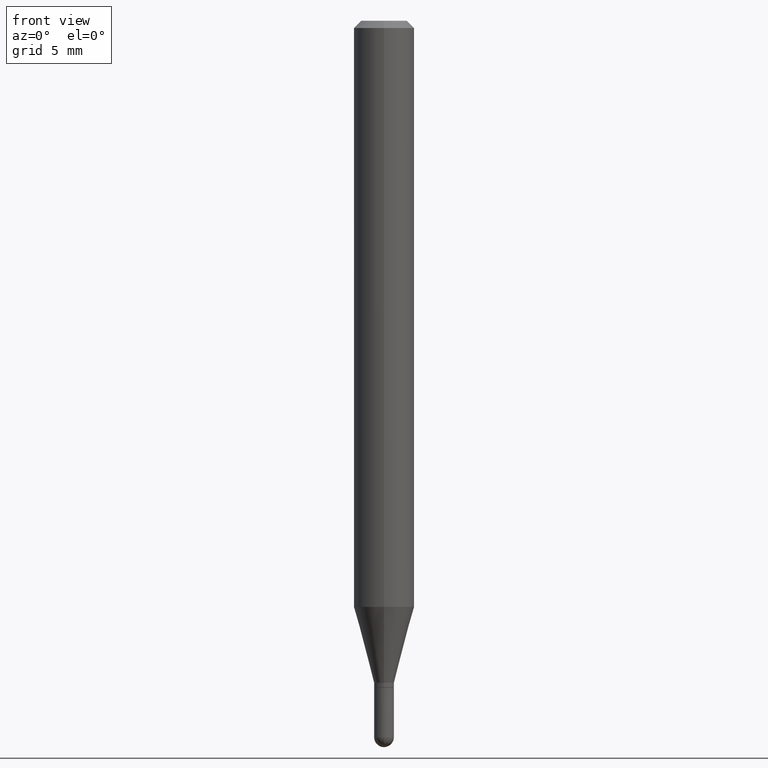
[diagram: clean part render]
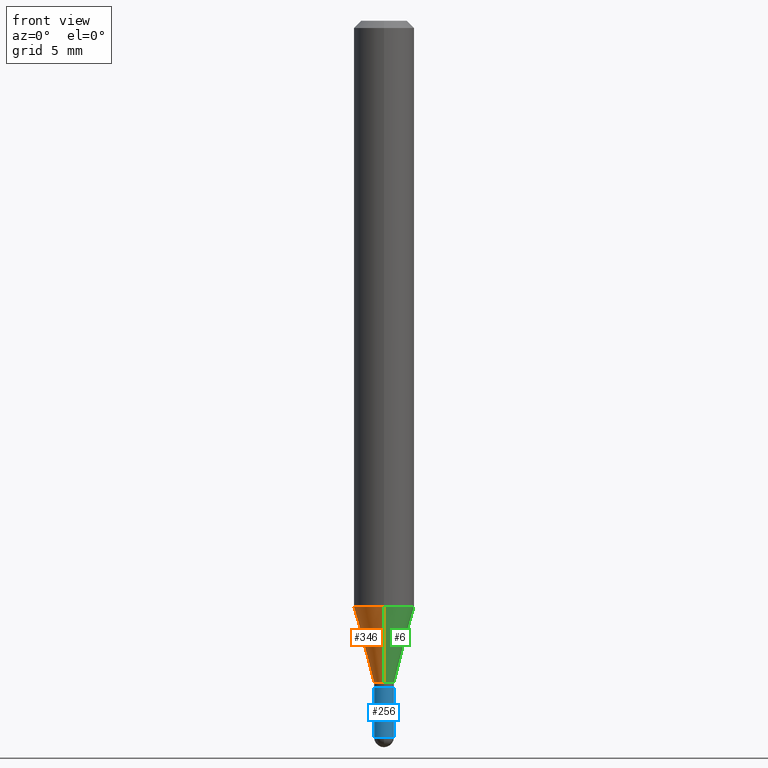
[diagram: same view with three faces highlighted in distinct colors, each labeled with its STEP entity id]
A machine part, front view with three faces highlighted in distinct colors.
Their STEP definitions:

[orange] entity #346 — the highlighted conical surface has half-angle 15 deg.
#15 = CARTESIAN_POINT ( 'NONE',  ( 4.440892098500920012E-16, 0.06249999999999574646, -1.210253866082108276 ) ) ;
#19 = VERTEX_POINT ( 'NONE', #252 ) ;
#27 = ORIENTED_EDGE ( 'NONE', *, *, #399, .F. ) ;
#36 = DIRECTION ( 'NONE',  ( -2.445286183513924545E-29, 3.491742864902558020E-15, 1.000000000000000000 ) ) ;
#82 = DIRECTION ( 'NONE',  ( -6.982962677686265133E-15, -1.000000000000000000, 0.000000000000000000 ) ) ;
#108 = CARTESIAN_POINT ( 'NONE',  ( 2.959417057274890367E-29, -4.225895301612936912E-15, -1.210253866082107832 ) ) ;
#114 = EDGE_CURVE ( 'NONE', #426, #19, #218, .T. ) ;
#120 = LINE ( 'NONE', #480, #501 ) ;
#130 = ORIENTED_EDGE ( 'NONE', *, *, #189, .F. ) ;
#131 = CARTESIAN_POINT ( 'NONE',  ( -1.431507348925345485E-16, -0.02050000000000470543, -1.367000000000000215 ) ) ;
#137 = VERTEX_POINT ( 'NONE', #384 ) ;
#156 = CARTESIAN_POINT ( 'NONE',  ( 3.342706212863535616E-29, -4.773212496321797638E-15, -1.367000000000000215 ) ) ;
#171 = CIRCLE ( 'NONE', #188, 0.02049999999999993494 ) ;
#188 = AXIS2_PLACEMENT_3D ( 'NONE', #156, #367, #82 ) ;
#189 = EDGE_CURVE ( 'NONE', #446, #19, #211, .T. ) ;
#211 = CIRCLE ( 'NONE', #360, 0.06250000000000000000 ) ;
#218 = LINE ( 'NONE', #302, #284 ) ;
#233 = DIRECTION ( 'NONE',  ( 1.839019923739603471E-15, 0.2588190451025254024, 0.9659258262890670910 ) ) ;
#250 = CONICAL_SURFACE ( 'NONE', #487, 0.02049999999999993494, 0.2617993877991507401 ) ;
#252 = CARTESIAN_POINT ( 'NONE',  ( -4.364351673553621857E-16, -0.06250000000000424660, -1.210253866082107610 ) ) ;
#284 = VECTOR ( 'NONE', #500, 39.37007874015748854 ) ;
#296 = ORIENTED_EDGE ( 'NONE', *, *, #114, .T. ) ;
#302 = CARTESIAN_POINT ( 'NONE',  ( -1.431507348925345485E-16, -0.02050000000000470543, -1.367000000000000215 ) ) ;
#314 = DIRECTION ( 'NONE',  ( -6.982962677686265922E-15, -1.000000000000000000, 4.370956789862821150E-15 ) ) ;
#327 = DIRECTION ( 'NONE',  ( -6.982962677686265133E-15, -1.000000000000000000, 0.000000000000000000 ) ) ;
#346 = ADVANCED_FACE ( 'NONE', ( #397 ), #250, .T. ) ;
#357 = EDGE_CURVE ( 'NONE', #137, #426, #171, .T. ) ;
#360 = AXIS2_PLACEMENT_3D ( 'NONE', #108, #429, #314 ) ;
#362 = CARTESIAN_POINT ( 'NONE',  ( 3.342706212863535616E-29, -4.773212496321797638E-15, -1.367000000000000215 ) ) ;
#367 = DIRECTION ( 'NONE',  ( -2.445286183513924545E-29, 3.491742864902558020E-15, 1.000000000000000000 ) ) ;
#383 = ORIENTED_EDGE ( 'NONE', *, *, #357, .T. ) ;
#384 = CARTESIAN_POINT ( 'NONE',  ( 2.948752353404729004E-16, 0.02049999999999516098, -1.367000000000000215 ) ) ;
#397 = FACE_OUTER_BOUND ( 'NONE', #410, .T. ) ;
#399 = EDGE_CURVE ( 'NONE', #137, #446, #120, .T. ) ;
#410 = EDGE_LOOP ( 'NONE', ( #27, #383, #296, #130 ) ) ;
#426 = VERTEX_POINT ( 'NONE', #131 ) ;
#429 = DIRECTION ( 'NONE',  ( -2.445286183513924545E-29, 3.491742864902558020E-15, 1.000000000000000000 ) ) ;
#446 = VERTEX_POINT ( 'NONE', #15 ) ;
#480 = CARTESIAN_POINT ( 'NONE',  ( 1.456612608308534545E-16, 0.02049999999999516098, -1.367000000000000215 ) ) ;
#487 = AXIS2_PLACEMENT_3D ( 'NONE', #362, #36, #327 ) ;
#500 = DIRECTION ( 'NONE',  ( -1.807323732225332900E-15, -0.2588190451025185745, 0.9659258262890687563 ) ) ;
#501 = VECTOR ( 'NONE', #233, 39.37007874015748143 ) ;

[blue] entity #256 — the highlighted cylindrical surface (edge-blend (fillet) strip) has radius 0.5207 mm, axis along (-0, 0, 1).
#13 = AXIS2_PLACEMENT_3D ( 'NONE', #247, #83, #241 ) ;
#21 = EDGE_CURVE ( 'NONE', #67, #495, #409, .T. ) ;
#24 = EDGE_CURVE ( 'NONE', #343, #413, #56, .T. ) ;
#37 = VECTOR ( 'NONE', #494, 39.37007874015748143 ) ;
#56 = LINE ( 'NONE', #207, #151 ) ;
#61 = DIRECTION ( 'NONE',  ( 1.000000000000000000, -6.982962677686264344E-15, 0.000000000000000000 ) ) ;
#67 = VERTEX_POINT ( 'NONE', #508 ) ;
#70 = CIRCLE ( 'NONE', #13, 0.02050000000000000086 ) ;
#76 = AXIS2_PLACEMENT_3D ( 'NONE', #468, #299, #111 ) ;
#83 = DIRECTION ( 'NONE',  ( -2.445468806185136597E-29, 3.491481338843145583E-15, 1.000000000000000000 ) ) ;
#88 = DIRECTION ( 'NONE',  ( -2.445468806185136597E-29, 3.491481338843145583E-15, 1.000000000000000000 ) ) ;
#105 = CARTESIAN_POINT ( 'NONE',  ( 3.618071098750910124E-29, -5.165646640818434953E-15, -1.479500000000000259 ) ) ;
#109 = ORIENTED_EDGE ( 'NONE', *, *, #200, .T. ) ;
#111 = DIRECTION ( 'NONE',  ( 1.000000000000000000, -6.982962677686264344E-15, 0.000000000000000000 ) ) ;
#125 = CARTESIAN_POINT ( 'NONE',  ( -0.02050000000000000086, -4.841046961371903070E-15, -1.377000000000000002 ) ) ;
#127 = DIRECTION ( 'NONE',  ( 1.000000000000000000, -6.982962677686267499E-15, 4.876176775795935232E-29 ) ) ;
#140 = EDGE_CURVE ( 'NONE', #343, #428, #398, .T. ) ;
#151 = VECTOR ( 'NONE', #368, 39.37007874015748143 ) ;
#152 = FACE_OUTER_BOUND ( 'NONE', #274, .T. ) ;
#159 = CARTESIAN_POINT ( 'NONE',  ( -0.02049999999999999392, -4.841046961371903070E-15, -1.479500000000000259 ) ) ;
#162 = CYLINDRICAL_SURFACE ( 'NONE', #374, 0.02049999999999999739 ) ;
#200 = EDGE_CURVE ( 'NONE', #428, #67, #412, .T. ) ;
#202 = ORIENTED_EDGE ( 'NONE', *, *, #24, .F. ) ;
#207 = CARTESIAN_POINT ( 'NONE',  ( -0.02049999999999999739, 1.456612608308205196E-16, -1.008381693502255444E-30 ) ) ;
#241 = DIRECTION ( 'NONE',  ( 1.000000000000000000, -6.982962677686261977E-15, 0.000000000000000000 ) ) ;
#247 = CARTESIAN_POINT ( 'NONE',  ( 3.367410546116933466E-29, -4.807769803587011733E-15, -1.377000000000000002 ) ) ;
#249 = CARTESIAN_POINT ( 'NONE',  ( -1.456612608307842073E-16, -0.02050000000000514952, -1.479500000000000259 ) ) ;
#256 = ADVANCED_FACE ( 'NONE', ( #152 ), #162, .T. ) ;
#274 = EDGE_LOOP ( 'NONE', ( #202, #490, #109, #454, #503 ) ) ;
#286 = AXIS2_PLACEMENT_3D ( 'NONE', #105, #308, #61 ) ;
#299 = DIRECTION ( 'NONE',  ( -2.445468806185136597E-29, 3.491481338843145583E-15, 1.000000000000000000 ) ) ;
#308 = DIRECTION ( 'NONE',  ( -2.445468806185136597E-29, 3.491481338843145583E-15, 1.000000000000000000 ) ) ;
#320 = CARTESIAN_POINT ( 'NONE',  ( 0.000000000000000000, 0.000000000000000000, 0.000000000000000000 ) ) ;
#343 = VERTEX_POINT ( 'NONE', #159 ) ;
#366 = CARTESIAN_POINT ( 'NONE',  ( 0.02049999999999999739, -1.431507348925684695E-16, 9.996162390381665713E-31 ) ) ;
#368 = DIRECTION ( 'NONE',  ( -2.445468806185136877E-29, 3.491481338843145188E-15, 1.000000000000000000 ) ) ;
#374 = AXIS2_PLACEMENT_3D ( 'NONE', #320, #88, #127 ) ;
#398 = CIRCLE ( 'NONE', #286, 0.02049999999999999392 ) ;
#409 = LINE ( 'NONE', #366, #37 ) ;
#412 = CIRCLE ( 'NONE', #76, 0.02049999999999999392 ) ;
#413 = VERTEX_POINT ( 'NONE', #125 ) ;
#428 = VERTEX_POINT ( 'NONE', #249 ) ;
#441 = CARTESIAN_POINT ( 'NONE',  ( 0.02050000000000000086, -4.950920538479579759E-15, -1.377000000000000002 ) ) ;
#454 = ORIENTED_EDGE ( 'NONE', *, *, #21, .T. ) ;
#468 = CARTESIAN_POINT ( 'NONE',  ( 3.618071098750910124E-29, -5.165646640818434953E-15, -1.479500000000000259 ) ) ;
#483 = EDGE_CURVE ( 'NONE', #413, #495, #70, .T. ) ;
#490 = ORIENTED_EDGE ( 'NONE', *, *, #140, .T. ) ;
#494 = DIRECTION ( 'NONE',  ( -2.445468806185136877E-29, 3.491481338843145188E-15, 1.000000000000000000 ) ) ;
#495 = VERTEX_POINT ( 'NONE', #441 ) ;
#503 = ORIENTED_EDGE ( 'NONE', *, *, #483, .F. ) ;
#508 = CARTESIAN_POINT ( 'NONE',  ( 0.02049999999999999392, -5.129858957095291369E-15, -1.479500000000000259 ) ) ;

[green] entity #6 — the highlighted conical surface has half-angle 15 deg.
#6 = ADVANCED_FACE ( 'NONE', ( #205 ), #20, .T. ) ;
#15 = CARTESIAN_POINT ( 'NONE',  ( 4.440892098500920012E-16, 0.06249999999999574646, -1.210253866082108276 ) ) ;
#19 = VERTEX_POINT ( 'NONE', #252 ) ;
#20 = CONICAL_SURFACE ( 'NONE', #258, 0.02049999999999993494, 0.2617993877991507401 ) ;
#44 = DIRECTION ( 'NONE',  ( -6.982962677686265922E-15, -1.000000000000000000, 4.370956789862821150E-15 ) ) ;
#57 = EDGE_CURVE ( 'NONE', #426, #137, #230, .T. ) ;
#58 = DIRECTION ( 'NONE',  ( -2.445286183513924545E-29, 3.491742864902558020E-15, 1.000000000000000000 ) ) ;
#114 = EDGE_CURVE ( 'NONE', #426, #19, #218, .T. ) ;
#120 = LINE ( 'NONE', #480, #501 ) ;
#126 = DIRECTION ( 'NONE',  ( -2.445286183513924545E-29, 3.491742864902558020E-15, 1.000000000000000000 ) ) ;
#129 = CIRCLE ( 'NONE', #270, 0.06250000000000000000 ) ;
#131 = CARTESIAN_POINT ( 'NONE',  ( -1.431507348925345485E-16, -0.02050000000000470543, -1.367000000000000215 ) ) ;
#137 = VERTEX_POINT ( 'NONE', #384 ) ;
#145 = DIRECTION ( 'NONE',  ( -2.445286183513924545E-29, 3.491742864902558020E-15, 1.000000000000000000 ) ) ;
#164 = ORIENTED_EDGE ( 'NONE', *, *, #502, .F. ) ;
#168 = EDGE_LOOP ( 'NONE', ( #169, #301, #164, #335 ) ) ;
#169 = ORIENTED_EDGE ( 'NONE', *, *, #57, .T. ) ;
#177 = DIRECTION ( 'NONE',  ( -6.982962677686265133E-15, -1.000000000000000000, 0.000000000000000000 ) ) ;
#205 = FACE_OUTER_BOUND ( 'NONE', #168, .T. ) ;
#218 = LINE ( 'NONE', #302, #284 ) ;
#230 = CIRCLE ( 'NONE', #317, 0.02049999999999993494 ) ;
#233 = DIRECTION ( 'NONE',  ( 1.839019923739603471E-15, 0.2588190451025254024, 0.9659258262890670910 ) ) ;
#245 = CARTESIAN_POINT ( 'NONE',  ( 3.342706212863535616E-29, -4.773212496321797638E-15, -1.367000000000000215 ) ) ;
#252 = CARTESIAN_POINT ( 'NONE',  ( -4.364351673553621857E-16, -0.06250000000000424660, -1.210253866082107610 ) ) ;
#258 = AXIS2_PLACEMENT_3D ( 'NONE', #245, #58, #338 ) ;
#270 = AXIS2_PLACEMENT_3D ( 'NONE', #449, #126, #44 ) ;
#284 = VECTOR ( 'NONE', #500, 39.37007874015748854 ) ;
#301 = ORIENTED_EDGE ( 'NONE', *, *, #399, .T. ) ;
#302 = CARTESIAN_POINT ( 'NONE',  ( -1.431507348925345485E-16, -0.02050000000000470543, -1.367000000000000215 ) ) ;
#317 = AXIS2_PLACEMENT_3D ( 'NONE', #352, #145, #177 ) ;
#335 = ORIENTED_EDGE ( 'NONE', *, *, #114, .F. ) ;
#338 = DIRECTION ( 'NONE',  ( -6.982962677686265133E-15, -1.000000000000000000, 0.000000000000000000 ) ) ;
#352 = CARTESIAN_POINT ( 'NONE',  ( 3.342706212863535616E-29, -4.773212496321797638E-15, -1.367000000000000215 ) ) ;
#384 = CARTESIAN_POINT ( 'NONE',  ( 2.948752353404729004E-16, 0.02049999999999516098, -1.367000000000000215 ) ) ;
#399 = EDGE_CURVE ( 'NONE', #137, #446, #120, .T. ) ;
#426 = VERTEX_POINT ( 'NONE', #131 ) ;
#446 = VERTEX_POINT ( 'NONE', #15 ) ;
#449 = CARTESIAN_POINT ( 'NONE',  ( 2.959417057274890367E-29, -4.225895301612936912E-15, -1.210253866082107832 ) ) ;
#480 = CARTESIAN_POINT ( 'NONE',  ( 1.456612608308534545E-16, 0.02049999999999516098, -1.367000000000000215 ) ) ;
#500 = DIRECTION ( 'NONE',  ( -1.807323732225332900E-15, -0.2588190451025185745, 0.9659258262890687563 ) ) ;
#501 = VECTOR ( 'NONE', #233, 39.37007874015748143 ) ;
#502 = EDGE_CURVE ( 'NONE', #19, #446, #129, .T. ) ;